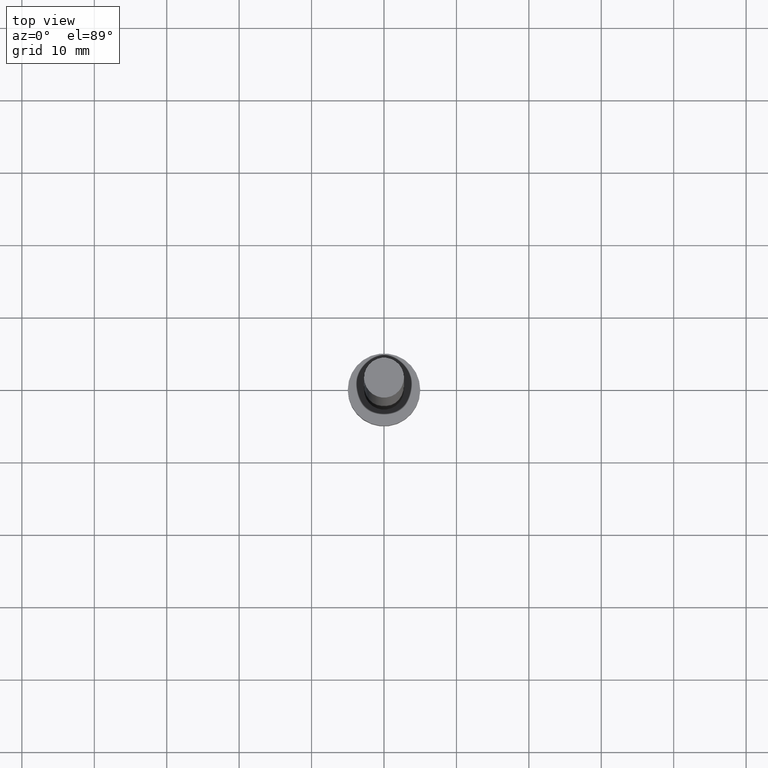
[diagram: clean part render]
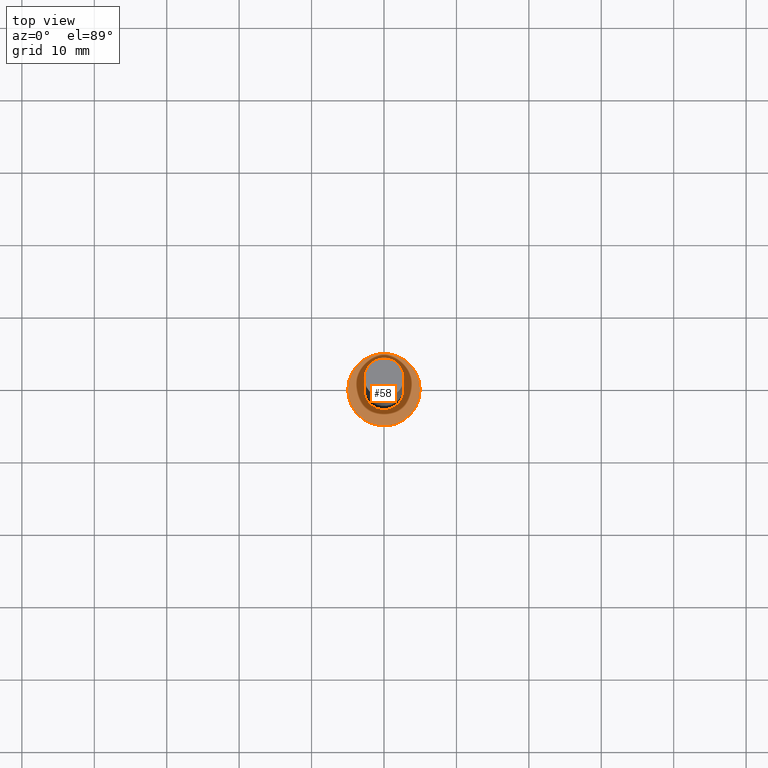
[diagram: same view with one face highlighted and labeled with its STEP entity id]
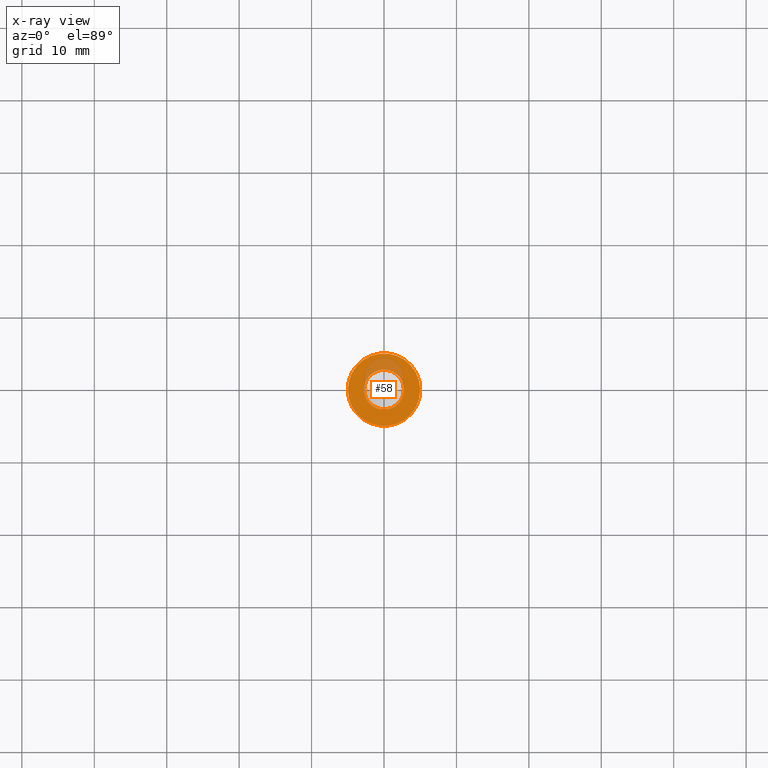
[diagram: x-ray of the same camera — body ghosted, the highlighted face saturated]
A machine part, top view. The second image highlights one B-rep face of the part: STEP entity #58.
The next image is the same camera in x-ray: the body ghosted, the highlighted face saturated — about 17% of this face is hidden behind the body in this view.
In plain terms, the highlighted planar face has unit normal (0, 0, 1).
Its self-contained STEP definition (entity closure, byte-faithful):
#3 = DIRECTION ( 'NONE',  ( 0.000000000000000000, 0.000000000000000000, 1.000000000000000000 ) ) ;
#6 = FACE_BOUND ( 'NONE', #122, .T. ) ;
#11 = DIRECTION ( 'NONE',  ( 1.000000000000000000, 0.000000000000000000, 0.000000000000000000 ) ) ;
#12 = CIRCLE ( 'NONE', #40, 2.750000000000000000 ) ;
#21 = CARTESIAN_POINT ( 'NONE',  ( 0.000000000000000000, 0.000000000000000000, 5.000000000000000000 ) ) ;
#23 = CIRCLE ( 'NONE', #162, 5.000000000000000000 ) ;
#30 = AXIS2_PLACEMENT_3D ( 'NONE', #225, #148, #43 ) ;
#40 = AXIS2_PLACEMENT_3D ( 'NONE', #111, #227, #11 ) ;
#43 = DIRECTION ( 'NONE',  ( 1.000000000000000000, 0.000000000000000000, 0.000000000000000000 ) ) ;
#46 = CARTESIAN_POINT ( 'NONE',  ( 2.750000000000000000, 3.367778697655221012E-16, 5.000000000000000000 ) ) ;
#50 = DIRECTION ( 'NONE',  ( 1.000000000000000000, 0.000000000000000000, 0.000000000000000000 ) ) ;
#58 = ADVANCED_FACE ( 'NONE', ( #6, #87 ), #126, .T. ) ;
#64 = VERTEX_POINT ( 'NONE', #152 ) ;
#75 = CARTESIAN_POINT ( 'NONE',  ( -5.000000000000000000, 0.000000000000000000, 5.000000000000000000 ) ) ;
#80 = ORIENTED_EDGE ( 'NONE', *, *, #250, .F. ) ;
#87 = FACE_OUTER_BOUND ( 'NONE', #101, .T. ) ;
#97 = DIRECTION ( 'NONE',  ( 0.000000000000000000, 0.000000000000000000, 1.000000000000000000 ) ) ;
#101 = EDGE_LOOP ( 'NONE', ( #215, #249 ) ) ;
#111 = CARTESIAN_POINT ( 'NONE',  ( 0.000000000000000000, 0.000000000000000000, 5.000000000000000000 ) ) ;
#122 = EDGE_LOOP ( 'NONE', ( #199, #80 ) ) ;
#124 = CARTESIAN_POINT ( 'NONE',  ( 0.000000000000000000, 0.000000000000000000, 5.000000000000000000 ) ) ;
#126 = PLANE ( 'NONE',  #168 ) ;
#128 = AXIS2_PLACEMENT_3D ( 'NONE', #21, #237, #185 ) ;
#129 = CARTESIAN_POINT ( 'NONE',  ( 0.000000000000000000, 0.000000000000000000, 5.000000000000000000 ) ) ;
#148 = DIRECTION ( 'NONE',  ( 0.000000000000000000, 0.000000000000000000, 1.000000000000000000 ) ) ;
#152 = CARTESIAN_POINT ( 'NONE',  ( -2.750000000000000000, 0.000000000000000000, 5.000000000000000000 ) ) ;
#155 = CIRCLE ( 'NONE', #30, 5.000000000000000000 ) ;
#162 = AXIS2_PLACEMENT_3D ( 'NONE', #129, #97, #50 ) ;
#167 = EDGE_CURVE ( 'NONE', #220, #187, #155, .T. ) ;
#168 = AXIS2_PLACEMENT_3D ( 'NONE', #124, #3, #171 ) ;
#171 = DIRECTION ( 'NONE',  ( 1.000000000000000000, 0.000000000000000000, -0.000000000000000000 ) ) ;
#172 = CARTESIAN_POINT ( 'NONE',  ( 5.000000000000000000, 6.123233995736766282E-16, 5.000000000000000000 ) ) ;
#185 = DIRECTION ( 'NONE',  ( 1.000000000000000000, 0.000000000000000000, 0.000000000000000000 ) ) ;
#187 = VERTEX_POINT ( 'NONE', #172 ) ;
#199 = ORIENTED_EDGE ( 'NONE', *, *, #200, .F. ) ;
#200 = EDGE_CURVE ( 'NONE', #64, #252, #222, .T. ) ;
#215 = ORIENTED_EDGE ( 'NONE', *, *, #167, .T. ) ;
#217 = EDGE_CURVE ( 'NONE', #187, #220, #23, .T. ) ;
#220 = VERTEX_POINT ( 'NONE', #75 ) ;
#222 = CIRCLE ( 'NONE', #128, 2.750000000000000000 ) ;
#225 = CARTESIAN_POINT ( 'NONE',  ( 0.000000000000000000, 0.000000000000000000, 5.000000000000000000 ) ) ;
#227 = DIRECTION ( 'NONE',  ( 0.000000000000000000, 0.000000000000000000, 1.000000000000000000 ) ) ;
#237 = DIRECTION ( 'NONE',  ( 0.000000000000000000, 0.000000000000000000, 1.000000000000000000 ) ) ;
#249 = ORIENTED_EDGE ( 'NONE', *, *, #217, .T. ) ;
#250 = EDGE_CURVE ( 'NONE', #252, #64, #12, .T. ) ;
#252 = VERTEX_POINT ( 'NONE', #46 ) ;